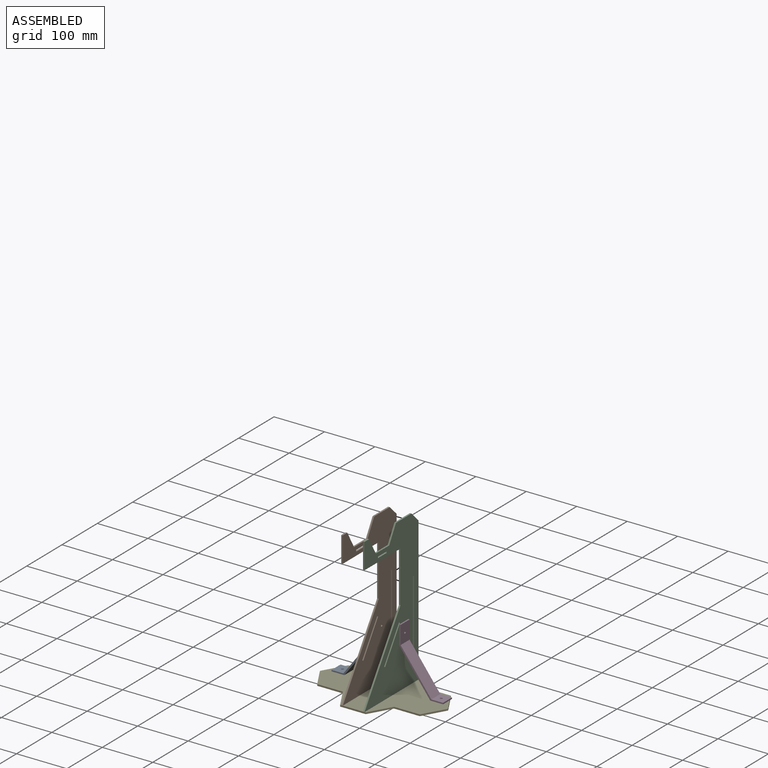
[diagram: assembled view]
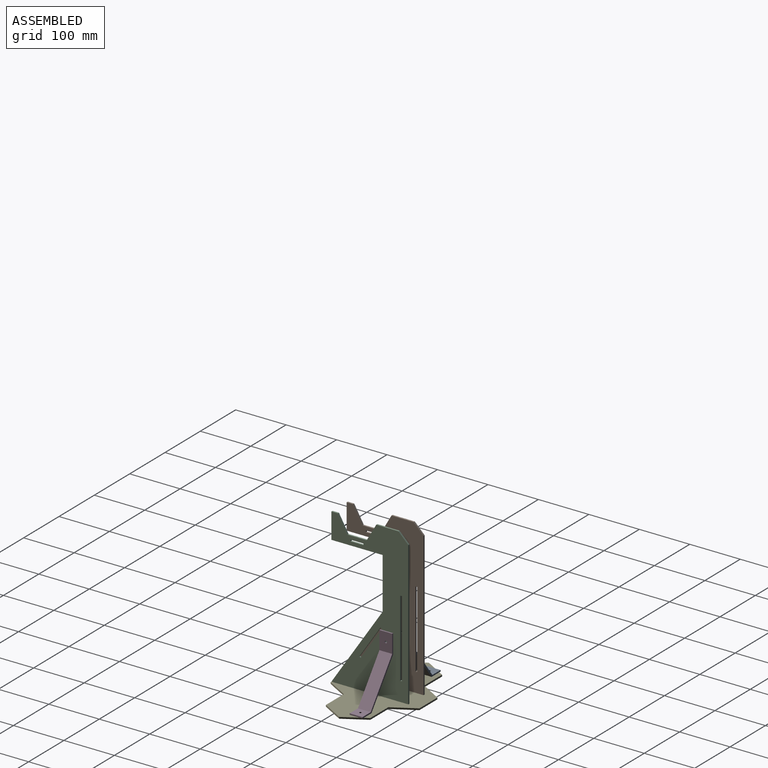
[diagram: assembled view, second angle]
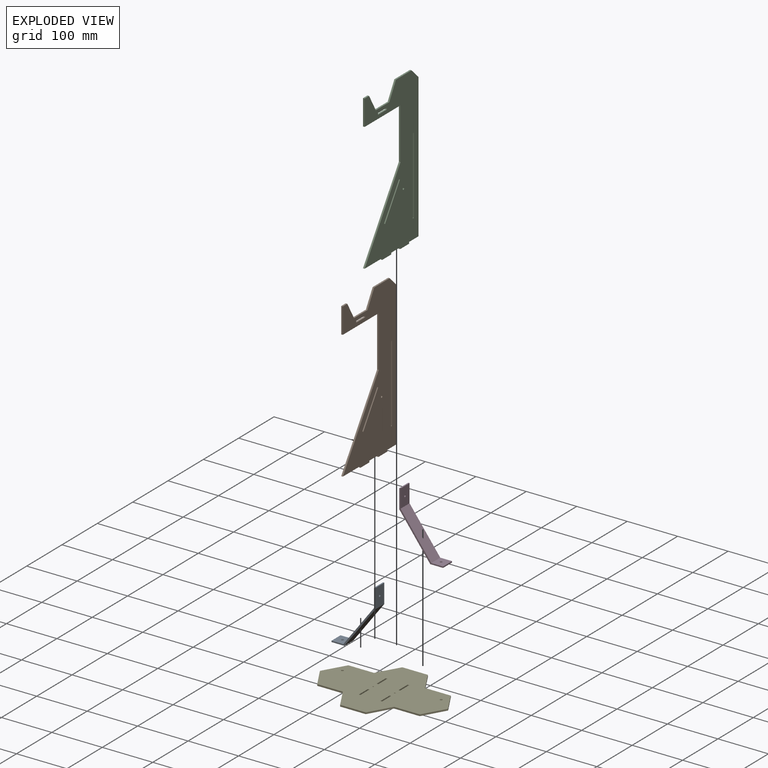
[diagram: exploded view]
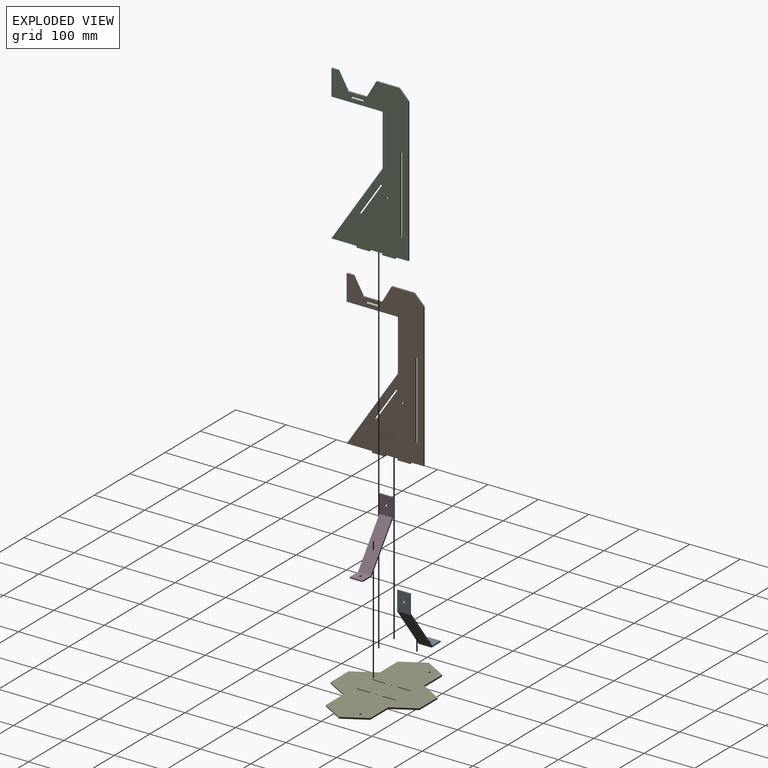
[diagram: exploded view, second angle]
ASSEMBLY  parts=5 mates=4
PART A: 12 faces, bbox 147.9x25.4x24.9 mm
  f0: plane 28.96x25.4mm, normal (-0.6,0,0.8), area 904.8mm2, adj f1,f7,f8,f9,f10
  f1: plane 101.4x25.4mm, normal (0,0,1), area 2575.6mm2, adj f0,f2,f8,f9
  f2: plane 25.4x18.67mm, normal (0.8,0,0.6), area 578.2mm2, adj f1,f3,f8,f9,f11
  f3: plane 25.4x2.03mm, normal (-0.6,0,0.8), area 64.5mm2, adj f2,f4,f8,f9
  f4: plane 25.4x20.32mm, normal (-0.8,0,-0.6), area 630.6mm2, adj f3,f5,f8,f9,f11
  f5: plane 102.2x25.4mm, normal (0,0,-1), area 2595.8mm2, adj f4,f6,f8,f9
  f6: plane 30.48x25.4mm, normal (0.6,0,-0.8), area 953.2mm2, adj f5,f7,f8,f9,f10
  f7: plane 25.4x2.03mm, normal (0.8,0,0.6), area 64.5mm2, adj f0,f6,f8,f9
  f8: plane 147.92x24.89mm, normal (0,-1,0), area 479.5mm2, adj f0,f1,f2,f3,f4,f5,f6,f7
  f9: plane 147.92x24.89mm, normal (0,1,0), area 479.5mm2, adj f0,f1,f2,f3,f4,f5,f6,f7
  f10: cylinder r=2.15mm len=4.97mm, axis (0.6,0,-0.8), area 34.4mm2, adj f0,f6
  f11: cylinder r=2.15mm len=4.97mm, axis (-0.8,0,-0.6), area 34.4mm2, adj f2,f4
PART B: 37 faces, bbox 152.4x3.2x308 mm
  f0: plane 307.98x152.4mm, normal (0,-1,0), area 25650.2mm2, adj f2,f3,f4,f5,f6,f7,f8,f9
  f1: plane 307.98x152.4mm, normal (0,1,0), area 25650.2mm2, adj f2,f3,f4,f5,f6,f7,f8,f9
  f2: plane 25.4x3.18mm, normal (0,0,-1), area 75.6mm2, adj f0,f1,f18,f20,f23
  f3: plane 26.28x3.18mm, normal (0,0,-1), area 83.4mm2, adj f0,f1,f7,f17
  f4: plane 12.7x3.18mm, normal (0,0,1), area 40.3mm2, adj f0,f1,f13,f14
  f5: plane 43.93x3.18mm, normal (0,0,1), area 139.5mm2, adj f0,f1,f6,f15
  f6: plane 19.57x19.57mm, normal (-0.71,0,0.71), area 87.9mm2, adj f0,f1,f5,f7
  f7: plane 285.23x3.18mm, normal (-1,0,0), area 905.6mm2, adj f0,f1,f3,f6
  f8: plane 49.92x3.18mm, normal (0,0,-1), area 158.5mm2, adj f0,f1,f9,f21
  f9: plane 152.4x101.6mm, normal (0.83,0,0.55), area 581.5mm2, adj f0,f1,f8,f10
  f10: plane 101.6x3.18mm, normal (1,0,0), area 322.6mm2, adj f0,f1,f9,f11
  f11: plane 101.6x3.18mm, normal (0,0,-1), area 322.6mm2, adj f0,f1,f10,f13
  f12: cylinder r=2.15mm len=4.31mm, axis (0,1,0), area 42.9mm2, adj f0,f1
  f13: plane 50.8x3.18mm, normal (1,0,0), area 161.3mm2, adj f0,f1,f4,f11
  f14: plane 33x19.05mm, normal (-0.87,0,0.5), area 121mm2, adj f0,f1,f4,f16
  f15: plane 33x19.05mm, normal (0.87,0,0.5), area 121mm2, adj f0,f1,f5,f16
  f16: plane 38.1x3.18mm, normal (0,0,1), area 121mm2, adj f0,f1,f14,f15
  f17: plane 3.18x3.18mm, normal (-1,0,0), area 10.1mm2, adj f0,f1,f3,f19
  f18: plane 3.18x3.18mm, normal (1,0,0), area 10.1mm2, adj f0,f1,f2,f19
  f19: plane 25.4x3.18mm, normal (0,0,-1), area 80.6mm2, adj f0,f1,f17,f18
  f20: plane 3.18x3.18mm, normal (-1,0,0), area 10.1mm2, adj f0,f1,f2,f22
  f21: plane 3.18x3.18mm, normal (1,0,0), area 10.1mm2, adj f0,f1,f8,f22
  f22: plane 25.4x3.18mm, normal (0,0,-1), area 80.6mm2, adj f0,f1,f20,f21
  f23: cylinder r=1.27mm len=2.54mm, axis (0,0,-1), area 20.3mm2, adj f2,f24
  f24: plane 2.54x2.54mm, normal (0,0,-1), area 5.1mm2, adj f23
  f25: plane 3.18x3.18mm, normal (-1,0,0), area 10.1mm2, adj f0,f1,f26,f28
  f26: plane 25.4x3.18mm, normal (0,0,-1), area 80.6mm2, adj f0,f1,f25,f27
  f27: plane 3.18x3.18mm, normal (1,0,0), area 10.1mm2, adj f0,f1,f26,f28
  f28: plane 25.4x3.18mm, normal (0,0,1), area 80.6mm2, adj f0,f1,f25,f27
  f29: plane 152.4x3.18mm, normal (-1,0,0), area 483.9mm2, adj f0,f1,f30,f32
  f30: plane 3.18x3.18mm, normal (0,0,1), area 10.1mm2, adj f0,f1,f29,f31
  f31: plane 152.4x3.18mm, normal (1,0,0), area 483.9mm2, adj f0,f1,f30,f32
  f32: plane 3.18x3.18mm, normal (0,0,-1), area 10.1mm2, adj f0,f1,f29,f31
  f33: plane 3.18x2.64mm, normal (-0.55,0,0.83), area 10.1mm2, adj f0,f1,f34,f36
  f34: plane 63.4x42.27mm, normal (0.83,0,0.55), area 241.9mm2, adj f0,f1,f33,f35
  f35: plane 3.18x2.64mm, normal (0.55,0,-0.83), area 10.1mm2, adj f0,f1,f34,f36
  f36: plane 63.4x42.27mm, normal (-0.83,0,-0.55), area 241.9mm2, adj f0,f1,f33,f35
PART C: same geometry as B
PART D: same geometry as A
PART E: 36 faces, bbox 254x176x3.2 mm
  f0: plane 254x175.98mm, normal (0,0,1), area 26457mm2, adj f2,f3,f4,f5,f6,f7,f8,f9
  f1: plane 254x175.98mm, normal (0,0,-1), area 26457mm2, adj f2,f3,f4,f5,f6,f7,f8,f9
  f2: plane 43.99x25.4mm, normal (0.87,0.5,0), area 161.3mm2, adj f0,f1,f3,f15
  f3: plane 50.8x3.18mm, normal (0,1,0), area 161.3mm2, adj f0,f1,f2,f4
  f4: plane 43.99x25.4mm, normal (0.87,0.5,0), area 161.3mm2, adj f0,f1,f3,f5
  f5: plane 50.8x3.18mm, normal (0,1,0), area 161.3mm2, adj f0,f1,f4,f6
  f6: plane 43.99x25.4mm, normal (-0.87,0.5,0), area 161.3mm2, adj f0,f1,f5,f7
  f7: plane 50.8x3.18mm, normal (0,1,0), area 161.3mm2, adj f0,f1,f6,f8
  f8: plane 43.99x25.4mm, normal (-0.87,0.5,0), area 161.3mm2, adj f0,f1,f7,f9
  f9: plane 43.99x25.4mm, normal (-0.87,-0.5,0), area 161.3mm2, adj f0,f1,f8,f10
  f10: plane 50.8x3.18mm, normal (0,-1,0), area 161.3mm2, adj f0,f1,f9,f11
  f11: plane 43.99x25.4mm, normal (-0.87,-0.5,0), area 161.3mm2, adj f0,f1,f10,f12
  f12: plane 50.8x3.18mm, normal (0,-1,0), area 161.3mm2, adj f0,f1,f11,f13
  f13: plane 43.99x25.4mm, normal (0.87,-0.5,0), area 161.3mm2, adj f0,f1,f12,f14
  f14: plane 50.8x3.18mm, normal (0,-1,0), area 161.3mm2, adj f0,f1,f13,f15
  f15: plane 43.99x25.4mm, normal (0.87,-0.5,0), area 161.3mm2, adj f0,f1,f2,f14
  f16: plane 25.4x3.18mm, normal (-1,0,0), area 80.6mm2, adj f0,f1,f17,f19
  f17: plane 3.18x3.18mm, normal (0,-1,0), area 10.1mm2, adj f0,f1,f16,f18
  f18: plane 25.4x3.18mm, normal (1,0,0), area 80.6mm2, adj f0,f1,f17,f19
  f19: plane 3.18x3.18mm, normal (0,1,0), area 10.1mm2, adj f0,f1,f16,f18
  f20: plane 25.4x3.18mm, normal (1,0,0), area 80.6mm2, adj f0,f1,f21,f23
  f21: plane 3.18x3.18mm, normal (0,1,0), area 10.1mm2, adj f0,f1,f20,f22
  f22: plane 25.4x3.18mm, normal (-1,0,0), area 80.6mm2, adj f0,f1,f21,f23
  f23: plane 3.18x3.18mm, normal (0,-1,0), area 10.1mm2, adj f0,f1,f20,f22
  f24: plane 3.18x3.18mm, normal (0,1,0), area 10.1mm2, adj f0,f1,f25,f27
  f25: plane 25.4x3.18mm, normal (-1,0,0), area 80.6mm2, adj f0,f1,f24,f26
  f26: plane 3.18x3.18mm, normal (0,-1,0), area 10.1mm2, adj f0,f1,f25,f27
  f27: plane 25.4x3.18mm, normal (1,0,0), area 80.6mm2, adj f0,f1,f24,f26
  f28: plane 25.4x3.18mm, normal (-1,0,0), area 80.6mm2, adj f0,f1,f29,f31
  f29: plane 3.18x3.18mm, normal (0,-1,0), area 10.1mm2, adj f0,f1,f28,f30
  f30: plane 25.4x3.18mm, normal (1,0,0), area 80.6mm2, adj f0,f1,f29,f31
  f31: plane 3.18x3.18mm, normal (0,1,0), area 10.1mm2, adj f0,f1,f28,f30
  f32: cylinder r=1.27mm len=3.18mm, axis (0,0,1), area 25.3mm2, adj f0,f1
  f33: cylinder r=1.27mm len=3.18mm, axis (0,0,1), area 25.3mm2, adj f0,f1
  f34: cylinder r=2.15mm len=4.31mm, axis (0,0,1), area 42.9mm2, adj f0,f1
  f35: cylinder r=2.15mm len=4.31mm, axis (0,0,1), area 42.9mm2, adj f0,f1
PLACE A rot(axis=(0,-1,0),53.1deg) t=(-272.04,-139.02,-104.82)mm
PLACE B rot(axis=(0,0,-1),90deg) t=(-260.12,-185.59,4.1)mm
PLACE C rot(axis=(0,0,-1),90deg) t=(-216.94,-185.59,4.1)mm
PLACE D rot(axis=(-0.45,0,-0.89),180deg) t=(-208.2,-164.42,-104.82)mm
PLACE E t=(-240.12,-217.76,-151.47)mm
MATE fastened C.f23 <-> E.f32  axis (0,0,-1) through (-218.53,-173.76,-148.3)mm
MATE fastened D.f11 <-> E.f35  axis (0,0,-1) through (-142.33,-151.72,-148.3)mm
MATE fastened A.f11 <-> E.f34  axis (0,0,-1) through (-337.91,-151.72,-148.3)mm
MATE fastened B.f23 <-> E.f33  axis (0,0,-1) through (-261.71,-173.76,-148.3)mm
